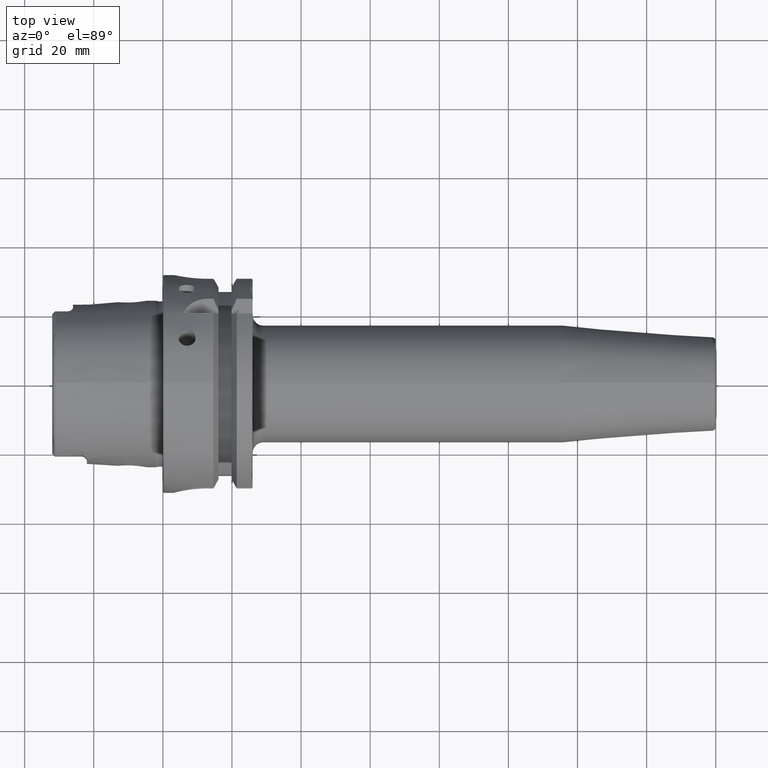
[diagram: clean part render]
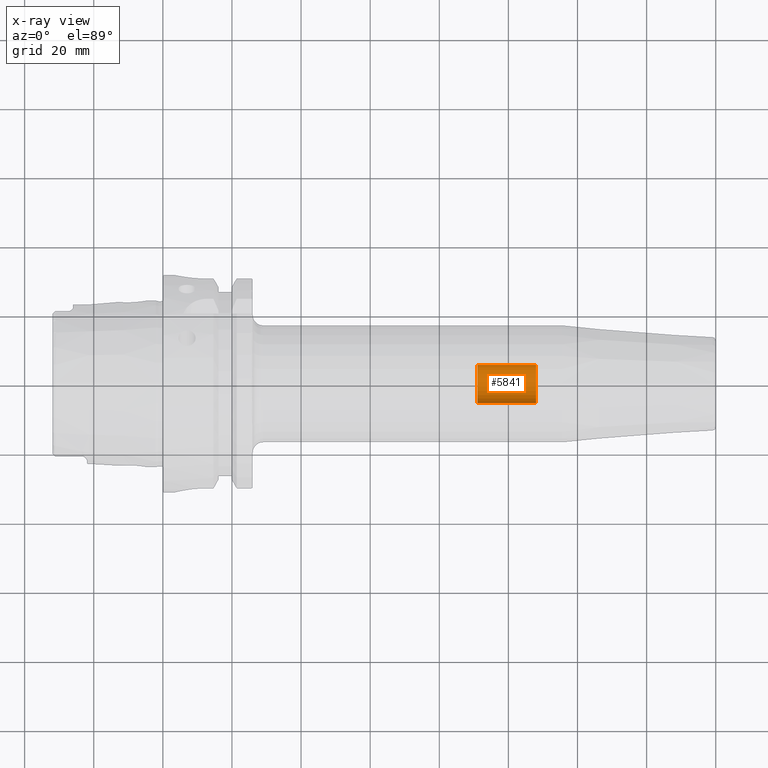
[diagram: x-ray — body ghosted, one internal face saturated and labeled with its STEP entity id]
A machine part, top view, then the same camera in x-ray: the body is ghosted and one INTERNAL B-rep face — a face not visible from any outside direction — is saturated and labeled: STEP entity #5841.
In plain terms, the highlighted cylindrical surface (edge-blend (fillet) strip) has radius 5.5 mm, axis along (1, 0, 0).
Its self-contained STEP definition (entity closure, byte-faithful):
#432=DIRECTION('',(1.E0,0.E0,0.E0));
#433=VECTOR('',#432,1.7E1);
#434=CARTESIAN_POINT('',(9.1E1,5.5E0,0.E0));
#435=LINE('',#434,#433);
#441=DIRECTION('',(1.E0,0.E0,0.E0));
#442=VECTOR('',#441,1.7E1);
#443=CARTESIAN_POINT('',(9.1E1,-5.5E0,0.E0));
#444=LINE('',#443,#442);
#445=CARTESIAN_POINT('',(1.08E2,0.E0,0.E0));
#446=DIRECTION('',(1.E0,0.E0,0.E0));
#447=DIRECTION('',(0.E0,-1.E0,0.E0));
#448=AXIS2_PLACEMENT_3D('',#445,#446,#447);
#2488=CARTESIAN_POINT('',(9.1E1,0.E0,0.E0));
#2489=DIRECTION('',(1.E0,0.E0,0.E0));
#2490=DIRECTION('',(0.E0,-1.E0,0.E0));
#2491=AXIS2_PLACEMENT_3D('',#2488,#2489,#2490);
#2992=CARTESIAN_POINT('',(9.1E1,-5.5E0,0.E0));
#2993=CARTESIAN_POINT('',(9.1E1,5.5E0,0.E0));
#2994=VERTEX_POINT('',#2992);
#2995=VERTEX_POINT('',#2993);
#2996=CARTESIAN_POINT('',(1.08E2,-5.5E0,0.E0));
#2997=CARTESIAN_POINT('',(1.08E2,5.5E0,0.E0));
#2998=VERTEX_POINT('',#2996);
#2999=VERTEX_POINT('',#2997);
#5830=CARTESIAN_POINT('',(8.668002992512E1,0.E0,0.E0));
#5831=DIRECTION('',(1.E0,0.E0,0.E0));
#5832=DIRECTION('',(0.E0,-1.E0,0.E0));
#5833=AXIS2_PLACEMENT_3D('',#5830,#5831,#5832);
#5834=CYLINDRICAL_SURFACE('',#5833,5.5E0);
#5835=ORIENTED_EDGE('',*,*,#3456,.F.);
#5836=ORIENTED_EDGE('',*,*,#3440,.F.);
#5837=ORIENTED_EDGE('',*,*,#3397,.T.);
#5838=ORIENTED_EDGE('',*,*,#3437,.T.);
#5839=EDGE_LOOP('',(#5835,#5836,#5837,#5838));
#5840=FACE_OUTER_BOUND('',#5839,.F.);
#5841=ADVANCED_FACE('',(#5840),#5834,.F.);
#449=CIRCLE('',#448,5.5E0);
#2492=CIRCLE('',#2491,5.5E0);
#3397=EDGE_CURVE('',#2994,#2995,#2492,.T.);
#3437=EDGE_CURVE('',#2995,#2999,#435,.T.);
#3440=EDGE_CURVE('',#2994,#2998,#444,.T.);
#3456=EDGE_CURVE('',#2998,#2999,#449,.T.);